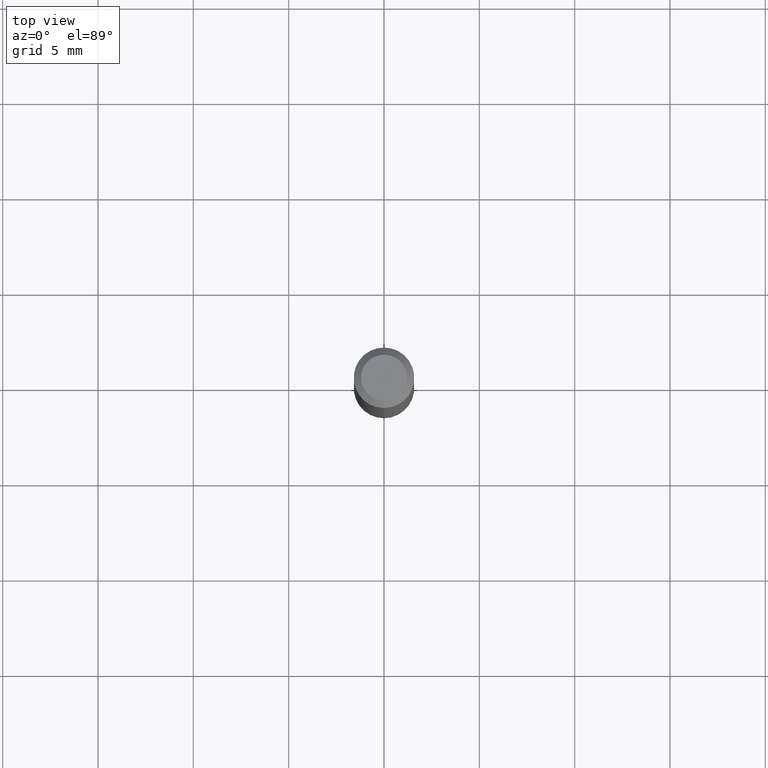
[diagram: clean part render]
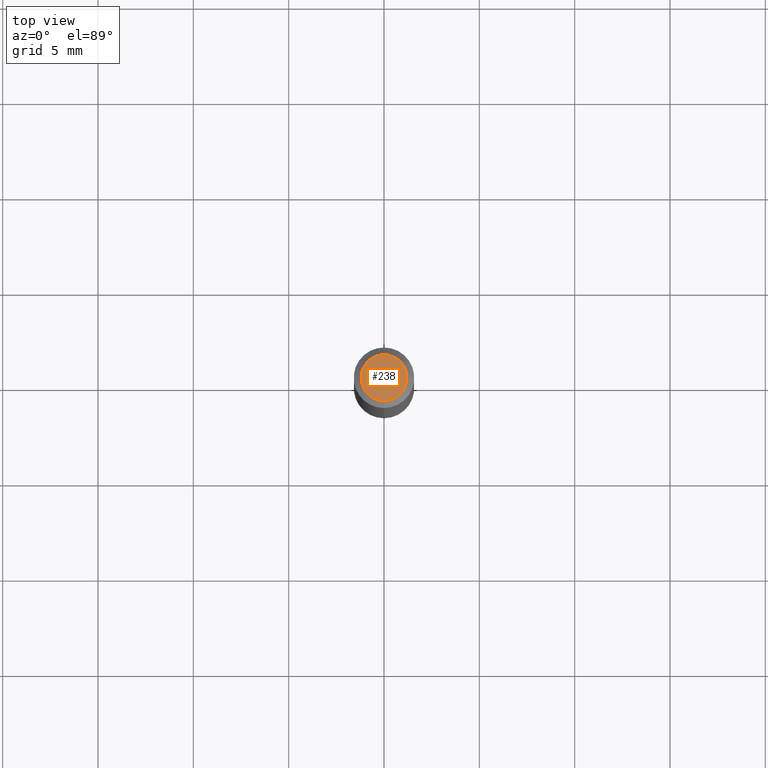
[diagram: same view with one face highlighted and labeled with its STEP entity id]
A machine part, top view. The second image highlights one B-rep face of the part: STEP entity #238.
In plain terms, the highlighted planar face has unit normal (0, -0, -1).
Its self-contained STEP definition (entity closure, byte-faithful):
#9 = ORIENTED_EDGE ( 'NONE', *, *, #111, .T. ) ;
#20 = CARTESIAN_POINT ( 'NONE',  ( 2.166709852925074545E-46, -3.093495193197750632E-32, -8.860111244192406634E-18 ) ) ;
#34 = EDGE_LOOP ( 'NONE', ( #114, #9 ) ) ;
#89 = CIRCLE ( 'NONE', #320, 0.04749999999999999362 ) ;
#105 = FACE_OUTER_BOUND ( 'NONE', #34, .T. ) ;
#111 = EDGE_CURVE ( 'NONE', #393, #365, #89, .T. ) ;
#114 = ORIENTED_EDGE ( 'NONE', *, *, #157, .T. ) ;
#154 = CARTESIAN_POINT ( 'NONE',  ( 3.840629472727447874E-16, 0.04749999999999999362, -1.747056831868805136E-16 ) ) ;
#157 = EDGE_CURVE ( 'NONE', #365, #393, #210, .T. ) ;
#182 = CARTESIAN_POINT ( 'NONE',  ( 2.166709852925074545E-46, -3.093495193197750632E-32, -8.860111244192406634E-18 ) ) ;
#210 = CIRCLE ( 'NONE', #488, 0.04749999999999999362 ) ;
#238 = ADVANCED_FACE ( 'NONE', ( #105 ), #460, .F. ) ;
#300 = DIRECTION ( 'NONE',  ( -2.445465743271904969E-29, 3.491485725109223553E-15, 1.000000000000000000 ) ) ;
#307 = DIRECTION ( 'NONE',  ( 2.445465743271904688E-29, -3.491485725109223553E-15, -1.000000000000000000 ) ) ;
#320 = AXIS2_PLACEMENT_3D ( 'NONE', #20, #347, #500 ) ;
#322 = CARTESIAN_POINT ( 'NONE',  ( -3.773273898774340269E-16, -0.04749999999999999362, 1.569854606984956973E-16 ) ) ;
#332 = AXIS2_PLACEMENT_3D ( 'NONE', #344, #307, #464 ) ;
#344 = CARTESIAN_POINT ( 'NONE',  ( 3.316907271900976096E-16, 0.04749999999999999362, -1.702756275647842911E-16 ) ) ;
#347 = DIRECTION ( 'NONE',  ( -2.445465743271904969E-29, 3.491485725109223553E-15, 1.000000000000000000 ) ) ;
#365 = VERTEX_POINT ( 'NONE', #154 ) ;
#393 = VERTEX_POINT ( 'NONE', #322 ) ;
#456 = DIRECTION ( 'NONE',  ( -6.982962677686266711E-15, -1.000000000000000000, 3.491485725109223948E-15 ) ) ;
#460 = PLANE ( 'NONE',  #332 ) ;
#464 = DIRECTION ( 'NONE',  ( 6.982962677686265922E-15, 1.000000000000000000, -3.491485725109223553E-15 ) ) ;
#488 = AXIS2_PLACEMENT_3D ( 'NONE', #182, #300, #456 ) ;
#500 = DIRECTION ( 'NONE',  ( -6.982962677686266711E-15, -1.000000000000000000, 3.491485725109223948E-15 ) ) ;